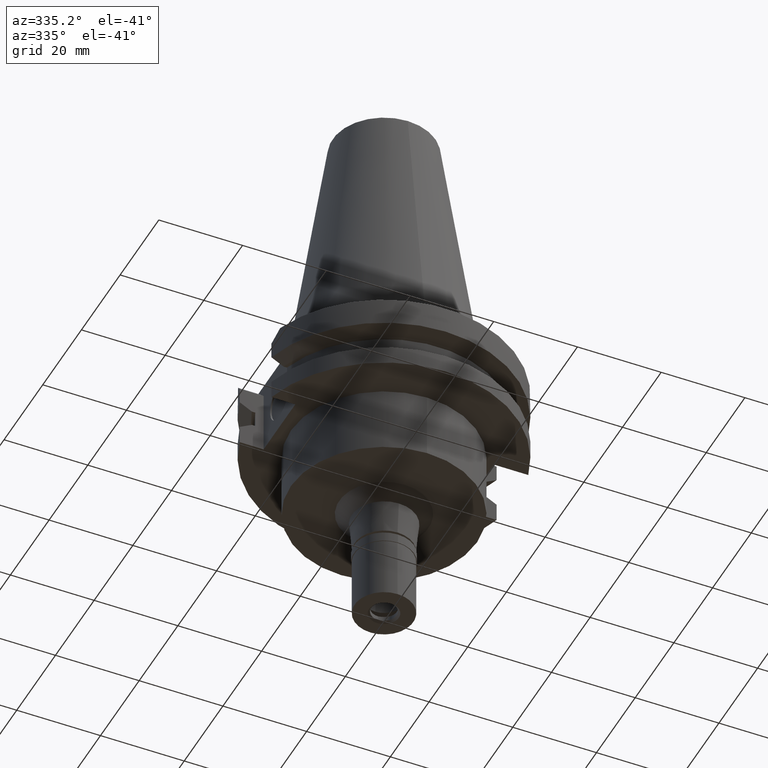
[diagram: clean part render]
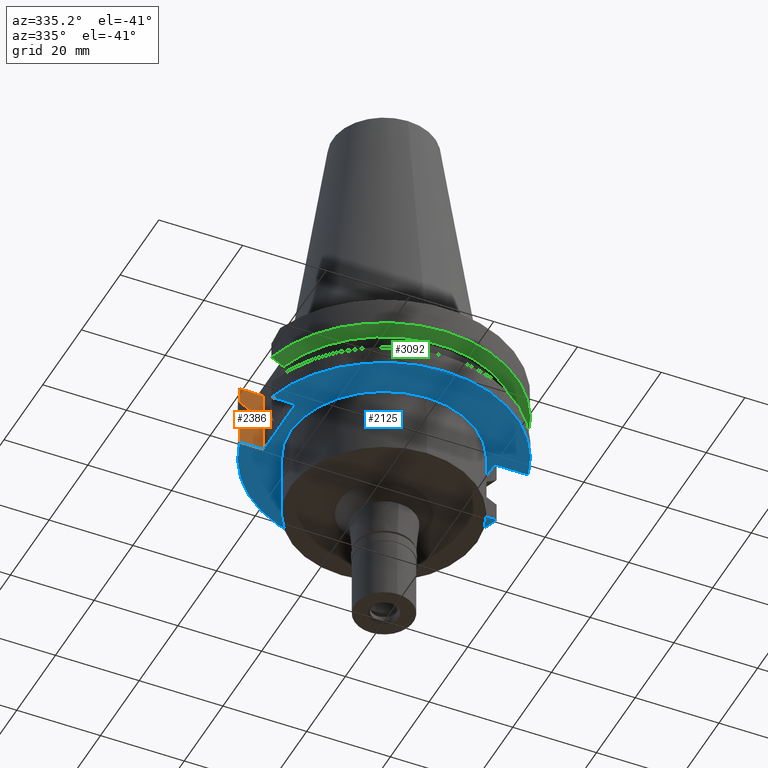
[diagram: same view with three faces highlighted in distinct colors, each labeled with its STEP entity id]
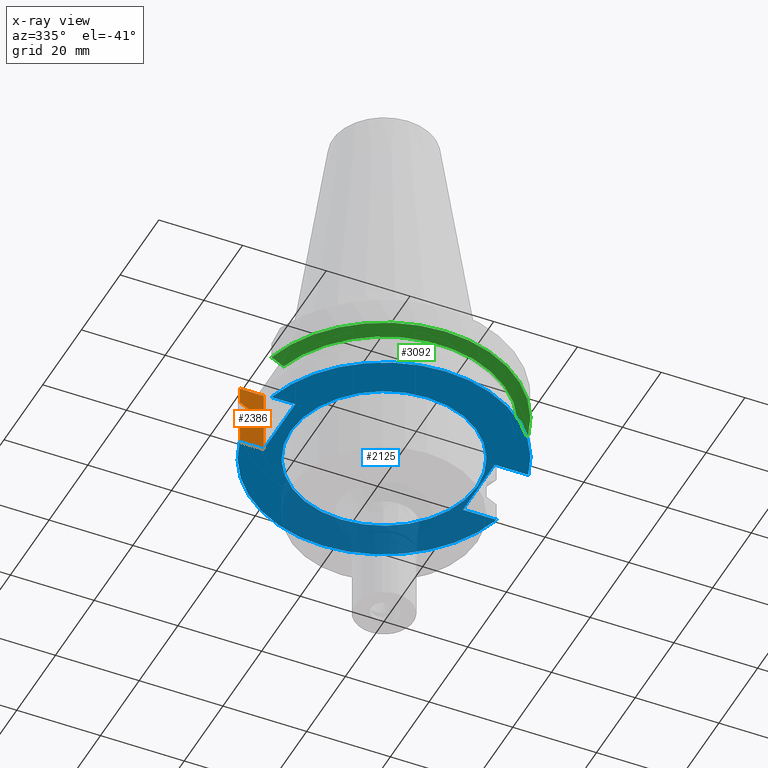
[diagram: x-ray of the same camera — body ghosted, the three highlighted faces saturated]
A machine part, auxiliary view with three faces highlighted in distinct colors.
The next image is the same camera in x-ray (body ghosted, the three faces saturated) — at least one of them is partly hidden behind the body in this view.
Their STEP definitions:

[orange] entity #2386 — the highlighted planar face has unit normal (0, 1, 0).
#91 = DIRECTION ( 'NONE',  ( 0.0000000000000000000, 0.0000000000000000000, -1.000000000000000000 ) ) ;
#136 = B_SPLINE_CURVE_WITH_KNOTS ( 'NONE', 3,
 ( #567, #739, #1993, #2531 ),
 .UNSPECIFIED., .F., .F.,
 ( 4, 4 ),
 ( 0.0000000000000000000, 1.000000000000000000 ),
 .UNSPECIFIED. ) ;
#170 = CARTESIAN_POINT ( 'NONE',  ( -26.96361066326000255, 8.189999999999999503, -9.207499999999999574 ) ) ;
#174 = EDGE_CURVE ( 'NONE', #667, #1270, #3185, .T. ) ;
#179 = CARTESIAN_POINT ( 'NONE',  ( -30.67550162588999640, 8.190000000000997815, -14.65366676908000088 ) ) ;
#272 = EDGE_CURVE ( 'NONE', #3186, #2583, #1144, .T. ) ;
#301 = EDGE_LOOP ( 'NONE', ( #3124, #752, #2860, #2066, #1008, #3182, #1550, #462, #1519, #2871 ) ) ;
#350 = CARTESIAN_POINT ( 'NONE',  ( -24.98000000000000043, 8.189999999999999503, -19.05000000000000071 ) ) ;
#351 = CARTESIAN_POINT ( 'NONE',  ( -24.98000000000000043, 8.189999999999999503, -3.700000000000000178 ) ) ;
#422 = CARTESIAN_POINT ( 'NONE',  ( -30.67550162588999640, 8.190000000000997815, -14.65366676908000088 ) ) ;
#424 = CARTESIAN_POINT ( 'NONE',  ( -28.73078904270999701, 8.189999993157000446, -13.57109501520000094 ) ) ;
#462 = ORIENTED_EDGE ( 'NONE', *, *, #2801, .T. ) ;
#474 = EDGE_CURVE ( 'NONE', #667, #1078, #1700, .T. ) ;
#481 = EDGE_CURVE ( 'NONE', #846, #2126, #3113, .T. ) ;
#513 = FACE_OUTER_BOUND ( 'NONE', #301, .T. ) ;
#537 = EDGE_CURVE ( 'NONE', #846, #1992, #2883, .T. ) ;
#567 = CARTESIAN_POINT ( 'NONE',  ( -27.78616457647999738, 8.190000188397998926, -9.207500000000999663 ) ) ;
#569 = CARTESIAN_POINT ( 'NONE',  ( -26.96361066326000255, 8.189999999999999503, -9.207499999999999574 ) ) ;
#634 = VECTOR ( 'NONE', #706, 1000.000000000000114 ) ;
#643 = LINE ( 'NONE', #1303, #2599 ) ;
#655 = PLANE ( 'NONE',  #2653 ) ;
#667 = VERTEX_POINT ( 'NONE', #819 ) ;
#706 = DIRECTION ( 'NONE',  ( 4.161399668825944362E-08, 1.558649312606979882E-07, -0.9999999999999868994 ) ) ;
#739 = CARTESIAN_POINT ( 'NONE',  ( -28.70625664611540984, 8.190000377223991990, -8.697959226007149880 ) ) ;
#752 = ORIENTED_EDGE ( 'NONE', *, *, #174, .F. ) ;
#809 = CARTESIAN_POINT ( 'NONE',  ( -30.67550162588999640, 8.189999999999999503, -19.05000000000000071 ) ) ;
#819 = CARTESIAN_POINT ( 'NONE',  ( -30.67550162588999640, 8.189999999999999503, -3.700000000000000178 ) ) ;
#846 = VERTEX_POINT ( 'NONE', #1407 ) ;
#853 = LINE ( 'NONE', #2591, #2449 ) ;
#893 = DIRECTION ( 'NONE',  ( -0.0000000000000000000, 1.000000000000000000, 0.0000000000000000000 ) ) ;
#918 = EDGE_CURVE ( 'NONE', #1992, #1690, #1301, .T. ) ;
#972 = CARTESIAN_POINT ( 'NONE',  ( -30.67550162588999640, 8.189999999999999503, -3.700000000000000178 ) ) ;
#987 = VECTOR ( 'NONE', #1329, 1000.000000000000000 ) ;
#1004 = DIRECTION ( 'NONE',  ( 1.000000000000000000, 0.0000000000000000000, 0.0000000000000000000 ) ) ;
#1007 = DIRECTION ( 'NONE',  ( 1.000000000000000000, 0.0000000000000000000, 0.0000000000000000000 ) ) ;
#1008 = ORIENTED_EDGE ( 'NONE', *, *, #481, .F. ) ;
#1078 = VERTEX_POINT ( 'NONE', #1295 ) ;
#1144 = LINE ( 'NONE', #350, #987 ) ;
#1170 = CARTESIAN_POINT ( 'NONE',  ( -24.98000000000000043, 8.189999999999999503, -19.05000000000000071 ) ) ;
#1225 = CARTESIAN_POINT ( 'NONE',  ( -30.67550162588999640, 8.189999999999999503, -3.700000000000000178 ) ) ;
#1270 = VERTEX_POINT ( 'NONE', #351 ) ;
#1295 = CARTESIAN_POINT ( 'NONE',  ( -30.67550146353999807, 8.190000608080000077, -7.601327796767000322 ) ) ;
#1299 = VECTOR ( 'NONE', #91, 1000.000000000000000 ) ;
#1301 = LINE ( 'NONE', #2730, #2069 ) ;
#1303 = CARTESIAN_POINT ( 'NONE',  ( -24.98000000000000043, 8.189999999999999503, -3.700000000000000178 ) ) ;
#1329 = DIRECTION ( 'NONE',  ( -1.000000000000000000, 0.0000000000000000000, 0.0000000000000000000 ) ) ;
#1345 = DIRECTION ( 'NONE',  ( 0.0000000000000000000, 0.0000000000000000000, -1.000000000000000000 ) ) ;
#1346 = VECTOR ( 'NONE', #1007, 1000.000000000000000 ) ;
#1372 = VERTEX_POINT ( 'NONE', #422 ) ;
#1386 = CARTESIAN_POINT ( 'NONE',  ( -27.78616457640000093, 8.190000188405001325, -13.04749999999999943 ) ) ;
#1407 = CARTESIAN_POINT ( 'NONE',  ( -26.96361066326000255, 8.189999999999999503, -9.207499999999999574 ) ) ;
#1519 = ORIENTED_EDGE ( 'NONE', *, *, #2253, .T. ) ;
#1550 = ORIENTED_EDGE ( 'NONE', *, *, #918, .T. ) ;
#1619 = CARTESIAN_POINT ( 'NONE',  ( -27.78616457640000093, 8.190000188405001325, -13.04749999999999943 ) ) ;
#1648 = CARTESIAN_POINT ( 'NONE',  ( -28.09928442397000126, 8.190000188405001325, -13.22090417123000172 ) ) ;
#1669 = EDGE_CURVE ( 'NONE', #2126, #1078, #136, .T. ) ;
#1686 = DIRECTION ( 'NONE',  ( -0.9999999999999736877, 2.290404543274939309E-07, -1.019313645859971649E-12 ) ) ;
#1690 = VERTEX_POINT ( 'NONE', #1386 ) ;
#1700 = LINE ( 'NONE', #1225, #634 ) ;
#1988 = CARTESIAN_POINT ( 'NONE',  ( -27.78616457647999738, 8.190000188397998926, -9.207500000000999663 ) ) ;
#1992 = VERTEX_POINT ( 'NONE', #2666 ) ;
#1993 = CARTESIAN_POINT ( 'NONE',  ( -29.66936136452787665, 8.190001215721581573, -8.162569465046555450 ) ) ;
#2026 = CARTESIAN_POINT ( 'NONE',  ( -24.98000000000000043, 8.189999999999999503, -19.05000000000000071 ) ) ;
#2066 = ORIENTED_EDGE ( 'NONE', *, *, #1669, .F. ) ;
#2069 = VECTOR ( 'NONE', #2240, 1000.000000000000114 ) ;
#2084 = CARTESIAN_POINT ( 'NONE',  ( -30.34652885387000154, 8.190000608097001589, -14.47016756340000043 ) ) ;
#2126 = VERTEX_POINT ( 'NONE', #1988 ) ;
#2240 = DIRECTION ( 'NONE',  ( -0.9999999999999736877, 2.290483108389939033E-07, 3.995191197081893247E-13 ) ) ;
#2250 = EDGE_CURVE ( 'NONE', #1270, #3186, #643, .T. ) ;
#2253 = EDGE_CURVE ( 'NONE', #1372, #2583, #853, .T. ) ;
#2328 = CARTESIAN_POINT ( 'NONE',  ( -29.69389160595000376, 8.189999741341999595, -14.10650333768000131 ) ) ;
#2386 = ADVANCED_FACE ( 'NONE', ( #513 ), #655, .F. ) ;
#2449 = VECTOR ( 'NONE', #2574, 1000.000000000000000 ) ;
#2531 = CARTESIAN_POINT ( 'NONE',  ( -30.67550146353999807, 8.190000608080000077, -7.601327796767000322 ) ) ;
#2574 = DIRECTION ( 'NONE',  ( -3.692948617321921916E-08, -1.383193006064971753E-07, -0.9999999999999897859 ) ) ;
#2583 = VERTEX_POINT ( 'NONE', #809 ) ;
#2591 = CARTESIAN_POINT ( 'NONE',  ( -30.67550146353999807, 8.190000608097001589, -14.65367220314000107 ) ) ;
#2599 = VECTOR ( 'NONE', #1345, 1000.000000000000000 ) ;
#2653 = AXIS2_PLACEMENT_3D ( 'NONE', #1170, #893, #1004 ) ;
#2666 = CARTESIAN_POINT ( 'NONE',  ( -26.96361066326000255, 8.189999999999999503, -13.04749999999999943 ) ) ;
#2730 = CARTESIAN_POINT ( 'NONE',  ( -26.96361066326000255, 8.189999999999999503, -13.04749999999999943 ) ) ;
#2801 = EDGE_CURVE ( 'NONE', #1690, #1372, #2846, .T. ) ;
#2846 = B_SPLINE_CURVE_WITH_KNOTS ( 'NONE', 3,
 ( #1619, #1648, #424, #2328, #2084, #179 ),
 .UNSPECIFIED., .F., .F.,
 ( 4, 1, 1, 4 ),
 ( 0.0000000000000000000, 0.3333333333333000081, 0.6666666666667000474, 1.000000000000000000 ),
 .UNSPECIFIED. ) ;
#2847 = VECTOR ( 'NONE', #1686, 1000.000000000000114 ) ;
#2860 = ORIENTED_EDGE ( 'NONE', *, *, #474, .T. ) ;
#2871 = ORIENTED_EDGE ( 'NONE', *, *, #272, .F. ) ;
#2883 = LINE ( 'NONE', #569, #1299 ) ;
#3113 = LINE ( 'NONE', #170, #2847 ) ;
#3124 = ORIENTED_EDGE ( 'NONE', *, *, #2250, .F. ) ;
#3182 = ORIENTED_EDGE ( 'NONE', *, *, #537, .T. ) ;
#3185 = LINE ( 'NONE', #972, #1346 ) ;
#3186 = VERTEX_POINT ( 'NONE', #2026 ) ;

[blue] entity #2125 — the highlighted planar face has unit normal (0, 0, -1).
#27 = CARTESIAN_POINT ( 'NONE',  ( 0.0000000000000000000, 22.22500000000000142, -19.05000000000000071 ) ) ;
#34 = EDGE_CURVE ( 'NONE', #1667, #1928, #1307, .T. ) ;
#40 = ORIENTED_EDGE ( 'NONE', *, *, #2313, .F. ) ;
#58 = CARTESIAN_POINT ( 'NONE',  ( 22.57000000000000028, -8.189999999999999503, -19.05000000000000071 ) ) ;
#76 = CARTESIAN_POINT ( 'NONE',  ( -24.98000000000000043, -8.189999999999999503, -19.05000000000000071 ) ) ;
#81 = ORIENTED_EDGE ( 'NONE', *, *, #2743, .T. ) ;
#195 = DIRECTION ( 'NONE',  ( 0.0000000000000000000, 0.0000000000000000000, 1.000000000000000000 ) ) ;
#205 = CARTESIAN_POINT ( 'NONE',  ( 22.57000000000000028, 8.189999999999999503, -19.05000000000000071 ) ) ;
#245 = ORIENTED_EDGE ( 'NONE', *, *, #2000, .F. ) ;
#272 = EDGE_CURVE ( 'NONE', #3186, #2583, #1144, .T. ) ;
#299 = DIRECTION ( 'NONE',  ( 0.0000000000000000000, -1.000000000000000000, 0.0000000000000000000 ) ) ;
#325 = VECTOR ( 'NONE', #299, 1000.000000000000000 ) ;
#350 = CARTESIAN_POINT ( 'NONE',  ( -24.98000000000000043, 8.189999999999999503, -19.05000000000000071 ) ) ;
#354 = ORIENTED_EDGE ( 'NONE', *, *, #2993, .F. ) ;
#358 = DIRECTION ( 'NONE',  ( -1.000000000000000000, 0.0000000000000000000, 0.0000000000000000000 ) ) ;
#434 = EDGE_CURVE ( 'NONE', #2111, #1634, #1197, .T. ) ;
#588 = CIRCLE ( 'NONE', #3161, 31.75000000000000000 ) ;
#659 = VERTEX_POINT ( 'NONE', #58 ) ;
#707 = DIRECTION ( 'NONE',  ( 0.0000000000000000000, 0.0000000000000000000, -1.000000000000000000 ) ) ;
#717 = CARTESIAN_POINT ( 'NONE',  ( -30.67550162588999640, -8.189999999999999503, -19.05000000000000071 ) ) ;
#776 = CARTESIAN_POINT ( 'NONE',  ( -24.98000000000000043, 8.189999999999999503, -19.05000000000000071 ) ) ;
#781 = FACE_BOUND ( 'NONE', #1113, .T. ) ;
#809 = CARTESIAN_POINT ( 'NONE',  ( -30.67550162588999640, 8.189999999999999503, -19.05000000000000071 ) ) ;
#862 = LINE ( 'NONE', #1848, #1406 ) ;
#868 = EDGE_CURVE ( 'NONE', #3186, #1667, #2864, .T. ) ;
#891 = VECTOR ( 'NONE', #1925, 1000.000000000000000 ) ;
#911 = CARTESIAN_POINT ( 'NONE',  ( 0.0000000000000000000, 2.138692553861000088E-14, -19.05000000000000071 ) ) ;
#948 = LINE ( 'NONE', #205, #891 ) ;
#987 = VECTOR ( 'NONE', #1329, 1000.000000000000000 ) ;
#991 = CARTESIAN_POINT ( 'NONE',  ( 22.57000000000000028, 8.189999999999999503, -19.05000000000000071 ) ) ;
#1041 = FACE_OUTER_BOUND ( 'NONE', #3121, .T. ) ;
#1065 = CARTESIAN_POINT ( 'NONE',  ( -24.98000000000000043, -8.189999999999999503, -19.05000000000000071 ) ) ;
#1103 = VECTOR ( 'NONE', #2764, 1000.000000000000000 ) ;
#1106 = AXIS2_PLACEMENT_3D ( 'NONE', #2035, #2823, #1367 ) ;
#1113 = EDGE_LOOP ( 'NONE', ( #1888, #1275 ) ) ;
#1144 = LINE ( 'NONE', #350, #987 ) ;
#1197 = CIRCLE ( 'NONE', #1659, 22.22500000000000142 ) ;
#1237 = DIRECTION ( 'NONE',  ( 0.0000000000000000000, 0.0000000000000000000, -1.000000000000000000 ) ) ;
#1275 = ORIENTED_EDGE ( 'NONE', *, *, #434, .F. ) ;
#1307 = LINE ( 'NONE', #1065, #2274 ) ;
#1329 = DIRECTION ( 'NONE',  ( -1.000000000000000000, 0.0000000000000000000, 0.0000000000000000000 ) ) ;
#1359 = AXIS2_PLACEMENT_3D ( 'NONE', #3178, #707, #1887 ) ;
#1367 = DIRECTION ( 'NONE',  ( 0.0000000000000000000, 1.000000000000000000, 0.0000000000000000000 ) ) ;
#1406 = VECTOR ( 'NONE', #1594, 1000.000000000000000 ) ;
#1409 = CIRCLE ( 'NONE', #1359, 22.22500000000000142 ) ;
#1454 = DIRECTION ( 'NONE',  ( 0.0000000000000000000, -1.000000000000000000, 0.0000000000000000000 ) ) ;
#1514 = PLANE ( 'NONE',  #1819 ) ;
#1577 = ORIENTED_EDGE ( 'NONE', *, *, #868, .F. ) ;
#1594 = DIRECTION ( 'NONE',  ( 0.0000000000000000000, -1.000000000000000000, 0.0000000000000000000 ) ) ;
#1634 = VERTEX_POINT ( 'NONE', #27 ) ;
#1659 = AXIS2_PLACEMENT_3D ( 'NONE', #911, #3177, #2936 ) ;
#1667 = VERTEX_POINT ( 'NONE', #76 ) ;
#1729 = VERTEX_POINT ( 'NONE', #1844 ) ;
#1819 = AXIS2_PLACEMENT_3D ( 'NONE', #2970, #1237, #2481 ) ;
#1844 = CARTESIAN_POINT ( 'NONE',  ( 30.67550162588999640, 8.189999999999999503, -19.05000000000000071 ) ) ;
#1848 = CARTESIAN_POINT ( 'NONE',  ( 22.57000000000000028, 8.189999999999999503, -19.05000000000000071 ) ) ;
#1858 = CIRCLE ( 'NONE', #1106, 31.75000000000000000 ) ;
#1887 = DIRECTION ( 'NONE',  ( 0.0000000000000000000, 1.000000000000000000, 0.0000000000000000000 ) ) ;
#1888 = ORIENTED_EDGE ( 'NONE', *, *, #1892, .F. ) ;
#1892 = EDGE_CURVE ( 'NONE', #1634, #2111, #1409, .T. ) ;
#1925 = DIRECTION ( 'NONE',  ( 1.000000000000000000, 0.0000000000000000000, 0.0000000000000000000 ) ) ;
#1928 = VERTEX_POINT ( 'NONE', #717 ) ;
#1994 = CARTESIAN_POINT ( 'NONE',  ( 30.67550162588999640, -8.189999999999999503, -19.05000000000000071 ) ) ;
#2000 = EDGE_CURVE ( 'NONE', #2061, #1729, #948, .T. ) ;
#2026 = CARTESIAN_POINT ( 'NONE',  ( -24.98000000000000043, 8.189999999999999503, -19.05000000000000071 ) ) ;
#2035 = CARTESIAN_POINT ( 'NONE',  ( 0.0000000000000000000, 2.138692553861000088E-14, -19.05000000000000071 ) ) ;
#2061 = VERTEX_POINT ( 'NONE', #991 ) ;
#2065 = EDGE_CURVE ( 'NONE', #659, #3167, #2208, .T. ) ;
#2111 = VERTEX_POINT ( 'NONE', #2527 ) ;
#2125 = ADVANCED_FACE ( 'NONE', ( #1041, #781 ), #1514, .T. ) ;
#2208 = LINE ( 'NONE', #2981, #1103 ) ;
#2274 = VECTOR ( 'NONE', #358, 1000.000000000000000 ) ;
#2313 = EDGE_CURVE ( 'NONE', #1729, #2583, #1858, .T. ) ;
#2365 = ORIENTED_EDGE ( 'NONE', *, *, #34, .F. ) ;
#2471 = ORIENTED_EDGE ( 'NONE', *, *, #272, .T. ) ;
#2481 = DIRECTION ( 'NONE',  ( 0.0000000000000000000, -1.000000000000000000, 0.0000000000000000000 ) ) ;
#2527 = CARTESIAN_POINT ( 'NONE',  ( 0.0000000000000000000, -22.22500000000000142, -19.05000000000000071 ) ) ;
#2583 = VERTEX_POINT ( 'NONE', #809 ) ;
#2715 = ORIENTED_EDGE ( 'NONE', *, *, #2065, .T. ) ;
#2722 = CARTESIAN_POINT ( 'NONE',  ( 0.0000000000000000000, 2.138692553861000088E-14, -19.05000000000000071 ) ) ;
#2743 = EDGE_CURVE ( 'NONE', #2061, #659, #862, .T. ) ;
#2764 = DIRECTION ( 'NONE',  ( 1.000000000000000000, 0.0000000000000000000, 0.0000000000000000000 ) ) ;
#2823 = DIRECTION ( 'NONE',  ( 0.0000000000000000000, 0.0000000000000000000, 1.000000000000000000 ) ) ;
#2864 = LINE ( 'NONE', #776, #325 ) ;
#2936 = DIRECTION ( 'NONE',  ( 0.0000000000000000000, -1.000000000000000000, 0.0000000000000000000 ) ) ;
#2970 = CARTESIAN_POINT ( 'NONE',  ( 0.0000000000000000000, 0.0000000000000000000, -19.05000000000000071 ) ) ;
#2981 = CARTESIAN_POINT ( 'NONE',  ( 22.57000000000000028, -8.189999999999999503, -19.05000000000000071 ) ) ;
#2993 = EDGE_CURVE ( 'NONE', #1928, #3167, #588, .T. ) ;
#3121 = EDGE_LOOP ( 'NONE', ( #2715, #354, #2365, #1577, #2471, #40, #245, #81 ) ) ;
#3161 = AXIS2_PLACEMENT_3D ( 'NONE', #2722, #195, #1454 ) ;
#3167 = VERTEX_POINT ( 'NONE', #1994 ) ;
#3177 = DIRECTION ( 'NONE',  ( 0.0000000000000000000, 0.0000000000000000000, -1.000000000000000000 ) ) ;
#3178 = CARTESIAN_POINT ( 'NONE',  ( 0.0000000000000000000, 2.138692553861000088E-14, -19.05000000000000071 ) ) ;
#3186 = VERTEX_POINT ( 'NONE', #2026 ) ;

[green] entity #3092 — the highlighted conical surface has half-angle 60 deg.
#10 = EDGE_CURVE ( 'NONE', #3103, #2416, #2893, .T. ) ;
#42 = DIRECTION ( 'NONE',  ( 0.0000000000000000000, 0.0000000000000000000, 1.000000000000000000 ) ) ;
#85 = CARTESIAN_POINT ( 'NONE',  ( -29.66936064089068736, -8.189999745273293996, -8.162570091284823803 ) ) ;
#88 = DIRECTION ( 'NONE',  ( -0.9592008904639479638, -0.2827253998726845241, 0.0000000000000000000 ) ) ;
#115 = CARTESIAN_POINT ( 'NONE',  ( -30.67550165990999744, -8.189999872589000418, -7.601334369521000056 ) ) ;
#320 = EDGE_CURVE ( 'NONE', #1258, #3139, #1401, .T. ) ;
#368 = CARTESIAN_POINT ( 'NONE',  ( -27.78617709611999942, -8.189999356957999410, -9.207500000000999663 ) ) ;
#441 = ORIENTED_EDGE ( 'NONE', *, *, #2227, .T. ) ;
#454 = DIRECTION ( 'NONE',  ( 0.0000000000000000000, 0.0000000000000000000, 1.000000000000000000 ) ) ;
#642 = ORIENTED_EDGE ( 'NONE', *, *, #10, .T. ) ;
#760 = CARTESIAN_POINT ( 'NONE',  ( 30.67550146353000073, -8.190000608127000703, -7.601327796348000376 ) ) ;
#843 = AXIS2_PLACEMENT_3D ( 'NONE', #2486, #42, #1309 ) ;
#882 = EDGE_CURVE ( 'NONE', #2416, #3139, #1830, .T. ) ;
#930 = CARTESIAN_POINT ( 'NONE',  ( 0.0000000000000000000, 1.121722380078999823E-14, -7.601333230925999551 ) ) ;
#1119 = B_SPLINE_CURVE_WITH_KNOTS ( 'NONE', 3,
 ( #115, #85, #2357, #368 ),
 .UNSPECIFIED., .F., .F.,
 ( 4, 4 ),
 ( 0.0000000000000000000, 1.000000000000000000 ),
 .UNSPECIFIED. ) ;
#1195 = AXIS2_PLACEMENT_3D ( 'NONE', #1393, #2385, #88 ) ;
#1258 = VERTEX_POINT ( 'NONE', #2555 ) ;
#1285 = ORIENTED_EDGE ( 'NONE', *, *, #882, .T. ) ;
#1309 = DIRECTION ( 'NONE',  ( 0.0000000000000000000, 1.000000000000000000, 0.0000000000000000000 ) ) ;
#1393 = CARTESIAN_POINT ( 'NONE',  ( 0.0000000000000000000, 1.121722380078999823E-14, -9.207500000002999840 ) ) ;
#1401 = CIRCLE ( 'NONE', #2438, 31.74999999999998579 ) ;
#1436 = DIRECTION ( 'NONE',  ( -0.9661575315241073270, -0.2579527559055020958, 0.0000000000000000000 ) ) ;
#1481 = EDGE_LOOP ( 'NONE', ( #1285, #2112, #441, #642 ) ) ;
#1540 = CARTESIAN_POINT ( 'NONE',  ( 30.67550146353000073, -8.190000608127000703, -7.601327796348000376 ) ) ;
#1830 = B_SPLINE_CURVE_WITH_KNOTS ( 'NONE', 3,
 ( #2461, #1963, #2977, #760 ),
 .UNSPECIFIED., .F., .F.,
 ( 4, 4 ),
 ( 0.0000000000000000000, 1.000000000000000000 ),
 .UNSPECIFIED. ) ;
#1884 = CARTESIAN_POINT ( 'NONE',  ( 27.78616457855999755, -8.190000188260000868, -9.207500000000999663 ) ) ;
#1963 = CARTESIAN_POINT ( 'NONE',  ( 28.70625664233047303, -8.190000376948226801, -8.697959228144501509 ) ) ;
#2112 = ORIENTED_EDGE ( 'NONE', *, *, #320, .F. ) ;
#2227 = EDGE_CURVE ( 'NONE', #1258, #3103, #1119, .T. ) ;
#2357 = CARTESIAN_POINT ( 'NONE',  ( -28.70626002306949331, -8.189998712494022115, -8.697957605117386137 ) ) ;
#2385 = DIRECTION ( 'NONE',  ( 0.0000000000000000000, 0.0000000000000000000, 1.000000000000000000 ) ) ;
#2416 = VERTEX_POINT ( 'NONE', #1884 ) ;
#2438 = AXIS2_PLACEMENT_3D ( 'NONE', #930, #454, #1436 ) ;
#2461 = CARTESIAN_POINT ( 'NONE',  ( 27.78616457855999755, -8.190000188260000868, -9.207500000000999663 ) ) ;
#2486 = CARTESIAN_POINT ( 'NONE',  ( 0.0000000000000000000, 1.121722380078999823E-14, -8.404416615464000984 ) ) ;
#2555 = CARTESIAN_POINT ( 'NONE',  ( -30.67550165990999744, -8.189999872589000418, -7.601334369521000056 ) ) ;
#2748 = CARTESIAN_POINT ( 'NONE',  ( -27.78617709611999942, -8.189999356957999410, -9.207500000000999663 ) ) ;
#2793 = FACE_OUTER_BOUND ( 'NONE', #1481, .T. ) ;
#2855 = CONICAL_SURFACE ( 'NONE', #843, 30.35901877526999826, 1.047197551196400456 ) ;
#2893 = CIRCLE ( 'NONE', #1195, 28.96803755052999918 ) ;
#2977 = CARTESIAN_POINT ( 'NONE',  ( 29.66936136022759030, -8.190001215816227642, -8.162569467430975223 ) ) ;
#3092 = ADVANCED_FACE ( 'NONE', ( #2793 ), #2855, .T. ) ;
#3103 = VERTEX_POINT ( 'NONE', #2748 ) ;
#3139 = VERTEX_POINT ( 'NONE', #1540 ) ;